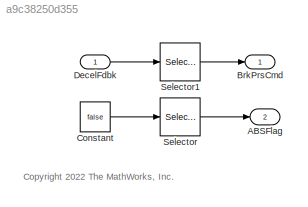
MODEL slx_a9c38250d355
KIND model
BLOCK [Outport] ABSFlag
  OutDataTypeStr = boolean
  Port = 2
  PortDimensions = 4
BLOCK [Outport] BrkPrsCmd
  OutDataTypeStr = double
  PortDimensions = 4
  VectorParamsAs1DForOutWhenUnconnected = off
BLOCK [Constant] Constant
  Value = false
BLOCK [Inport] DecelFdbk
  OutDataTypeStr = double
  PortDimensions = 1
BLOCK [Selector] Selector
  IndexOptions = Index vector (dialog)
  Indices = [1 1 1 1]
  InputPortWidth = 1
  OutputSizes = 1
BLOCK [Selector] Selector1
  IndexOptions = Index vector (dialog)
  Indices = [1 1 1 1]
  InputPortWidth = 1
  OutputSizes = 1
ANNOTATION (root): <copyright redacted>
LINE Constant:1 -> Selector:1
LINE DecelFdbk:1 -> Selector1:1
LINE Selector1:1 -> BrkPrsCmd:1
LINE Selector:1 -> ABSFlag:1
